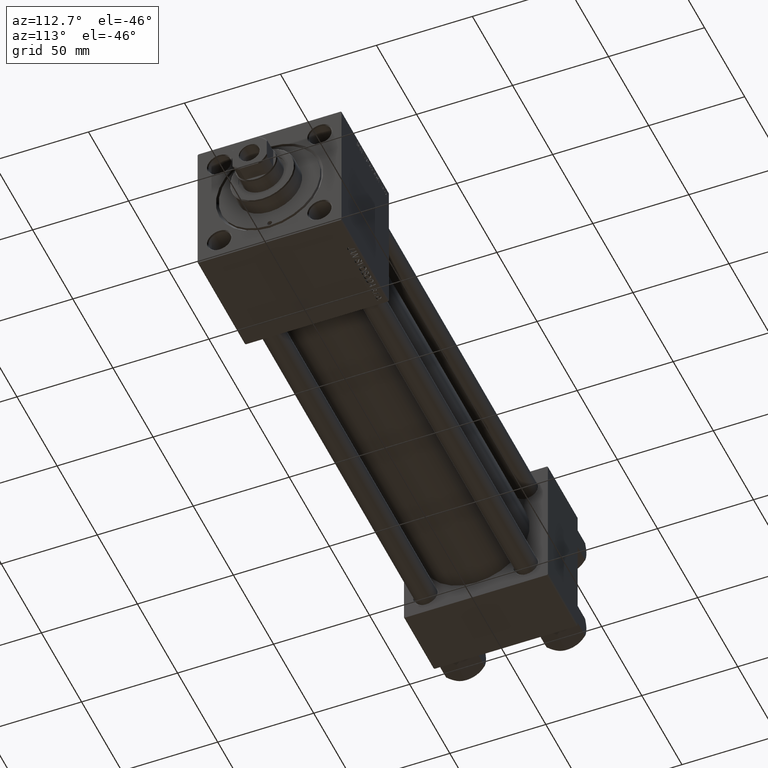
[diagram: clean part render]
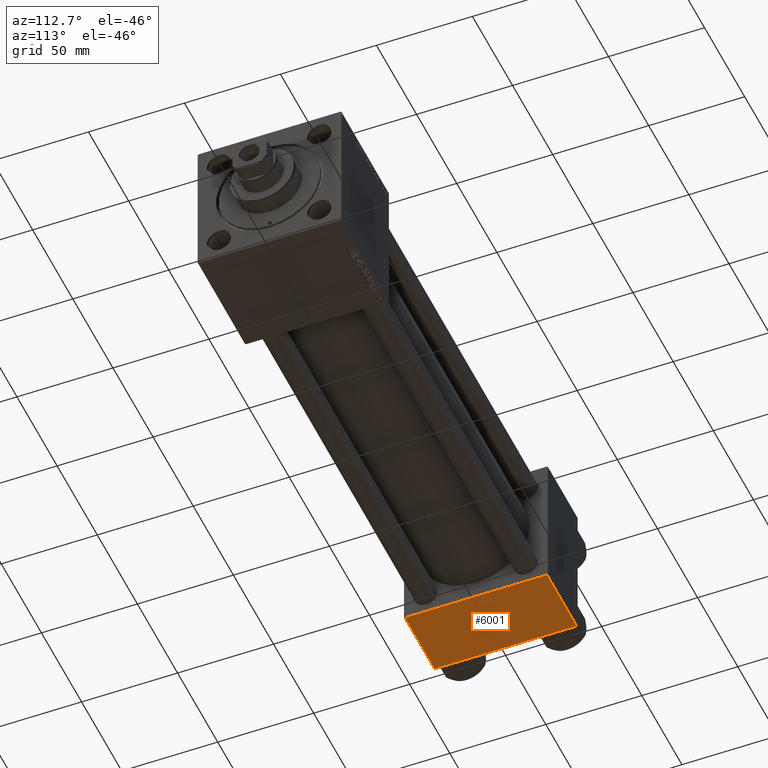
[diagram: same view with one face highlighted and labeled with its STEP entity id]
A machine part, auxiliary view. The second image highlights one B-rep face of the part: STEP entity #6001.
In plain terms, the highlighted planar face has unit normal (0, 0, -1).
Its self-contained STEP definition (entity closure, byte-faithful):
#2101 = VERTEX_POINT ( 'NONE', #35972 ) ;
#2618 = CARTESIAN_POINT ( 'NONE',  ( 0.000000000000000000, 37.49999999999999289, -37.50000000000000000 ) ) ;
#3748 = CARTESIAN_POINT ( 'NONE',  ( 37.00000000000000000, 36.99999999999997868, -37.50000000000000000 ) ) ;
#4320 = EDGE_CURVE ( 'NONE', #7591, #32665, #37527, .T. ) ;
#4583 = VECTOR ( 'NONE', #18997, 1000.000000000000000 ) ;
#5202 = DIRECTION ( 'NONE',  ( 0.000000000000000000, 1.000000000000000000, 9.251858538542972814E-17 ) ) ;
#6001 = ADVANCED_FACE ( 'NONE', ( #9042 ), #32225, .T. ) ;
#7591 = VERTEX_POINT ( 'NONE', #33669 ) ;
#9042 = FACE_OUTER_BOUND ( 'NONE', #19961, .T. ) ;
#12880 = DIRECTION ( 'NONE',  ( 0.000000000000000000, 9.251858538542972814E-17, -1.000000000000000000 ) ) ;
#13712 = VECTOR ( 'NONE', #45405, 1000.000000000000000 ) ;
#15762 = ORIENTED_EDGE ( 'NONE', *, *, #22518, .T. ) ;
#16692 = VECTOR ( 'NONE', #25790, 1000.000000000000000 ) ;
#18997 = DIRECTION ( 'NONE',  ( -1.000000000000000000, 0.000000000000000000, 0.000000000000000000 ) ) ;
#19367 = ORIENTED_EDGE ( 'NONE', *, *, #40160, .T. ) ;
#19961 = EDGE_LOOP ( 'NONE', ( #47065, #25905, #15762, #19367 ) ) ;
#22476 = CARTESIAN_POINT ( 'NONE',  ( 37.00000000000000000, 36.99999999999997868, -37.50000000000000000 ) ) ;
#22518 = EDGE_CURVE ( 'NONE', #27221, #2101, #44805, .T. ) ;
#23168 = EDGE_CURVE ( 'NONE', #7591, #27221, #33178, .T. ) ;
#25790 = DIRECTION ( 'NONE',  ( 1.000000000000000000, 0.000000000000000000, 0.000000000000000000 ) ) ;
#25905 = ORIENTED_EDGE ( 'NONE', *, *, #23168, .T. ) ;
#25972 = CARTESIAN_POINT ( 'NONE',  ( 37.00000000000000000, 37.49999999999999289, -37.50000000000000000 ) ) ;
#27221 = VERTEX_POINT ( 'NONE', #3748 ) ;
#32225 = PLANE ( 'NONE',  #48681 ) ;
#32665 = VERTEX_POINT ( 'NONE', #42015 ) ;
#33178 = LINE ( 'NONE', #22476, #16692 ) ;
#33669 = CARTESIAN_POINT ( 'NONE',  ( 0.000000000000000000, 36.99999999999997868, -37.50000000000000000 ) ) ;
#33866 = DIRECTION ( 'NONE',  ( 0.000000000000000000, -1.000000000000000000, -9.251858538542972814E-17 ) ) ;
#34018 = CARTESIAN_POINT ( 'NONE',  ( 0.000000000000000000, -37.00000000000002132, -37.50000000000000711 ) ) ;
#35972 = CARTESIAN_POINT ( 'NONE',  ( 37.00000000000000000, -37.00000000000002132, -37.50000000000000711 ) ) ;
#37527 = LINE ( 'NONE', #2618, #13712 ) ;
#40160 = EDGE_CURVE ( 'NONE', #2101, #32665, #42401, .T. ) ;
#42015 = CARTESIAN_POINT ( 'NONE',  ( 0.000000000000000000, -37.00000000000002132, -37.50000000000000711 ) ) ;
#42401 = LINE ( 'NONE', #34018, #4583 ) ;
#44805 = LINE ( 'NONE', #25972, #46688 ) ;
#45405 = DIRECTION ( 'NONE',  ( 0.000000000000000000, -1.000000000000000000, -9.251858538542972814E-17 ) ) ;
#46688 = VECTOR ( 'NONE', #33866, 1000.000000000000000 ) ;
#47065 = ORIENTED_EDGE ( 'NONE', *, *, #4320, .F. ) ;
#47738 = CARTESIAN_POINT ( 'NONE',  ( 37.00000000000000000, 37.49999999999999289, -37.50000000000000000 ) ) ;
#48681 = AXIS2_PLACEMENT_3D ( 'NONE', #47738, #12880, #5202 ) ;